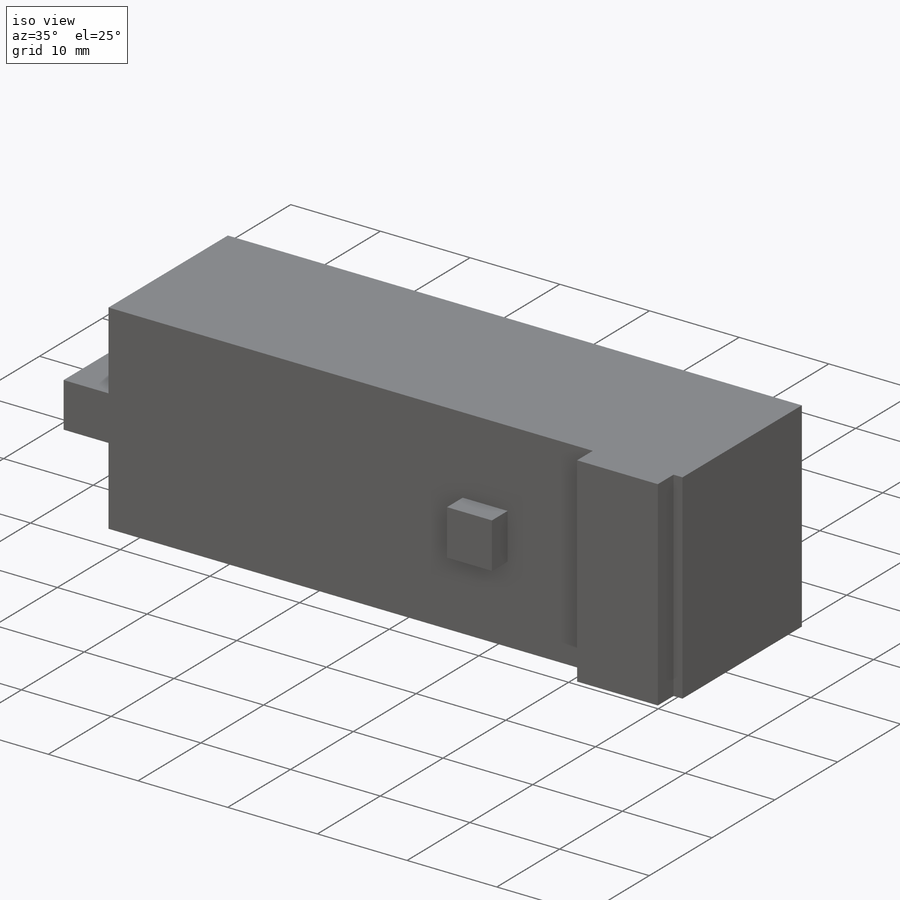
[diagram: iso view]
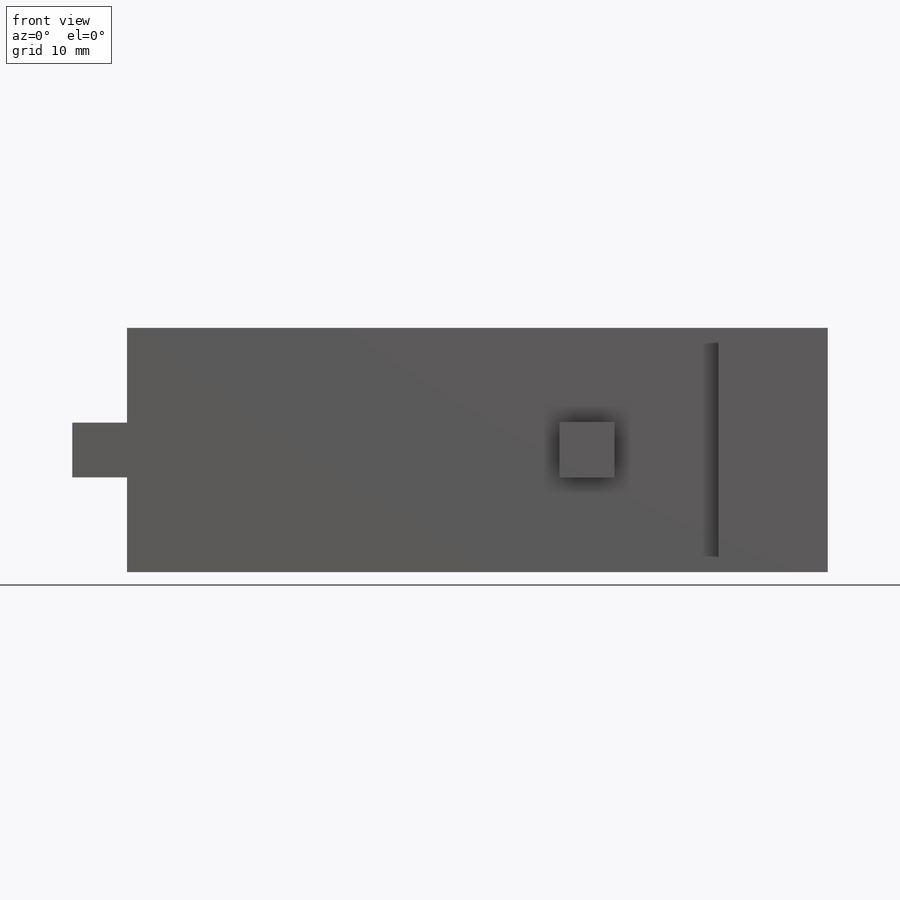
[diagram: front view]
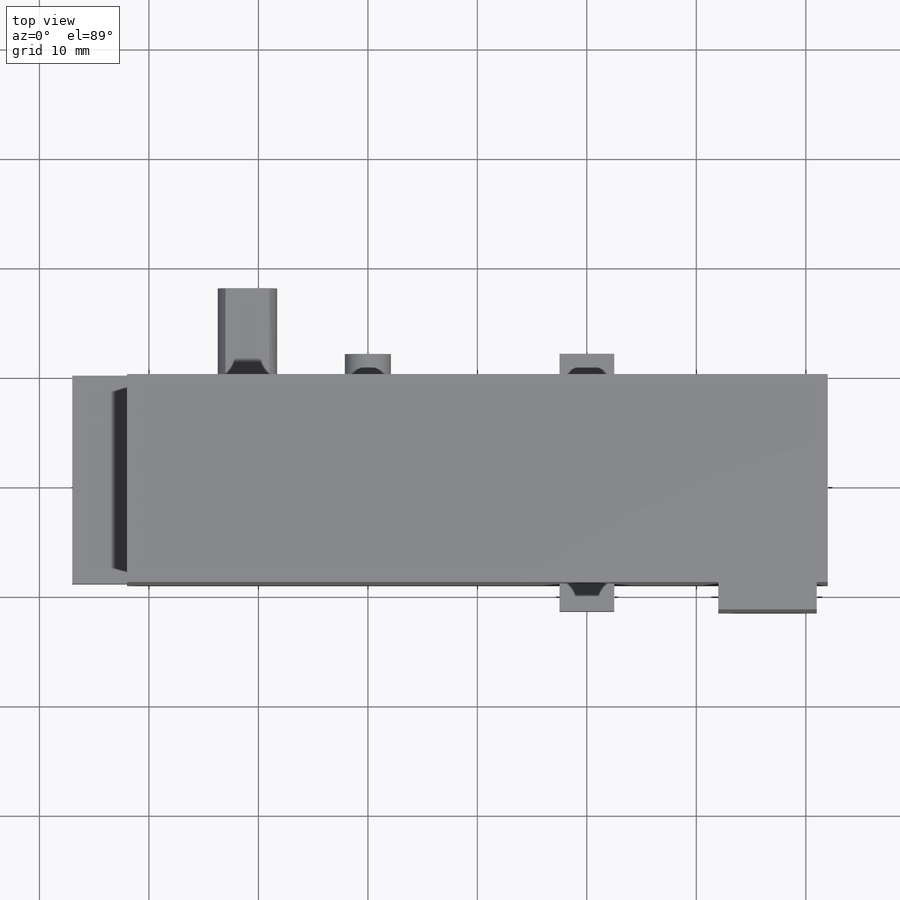
[diagram: top view]
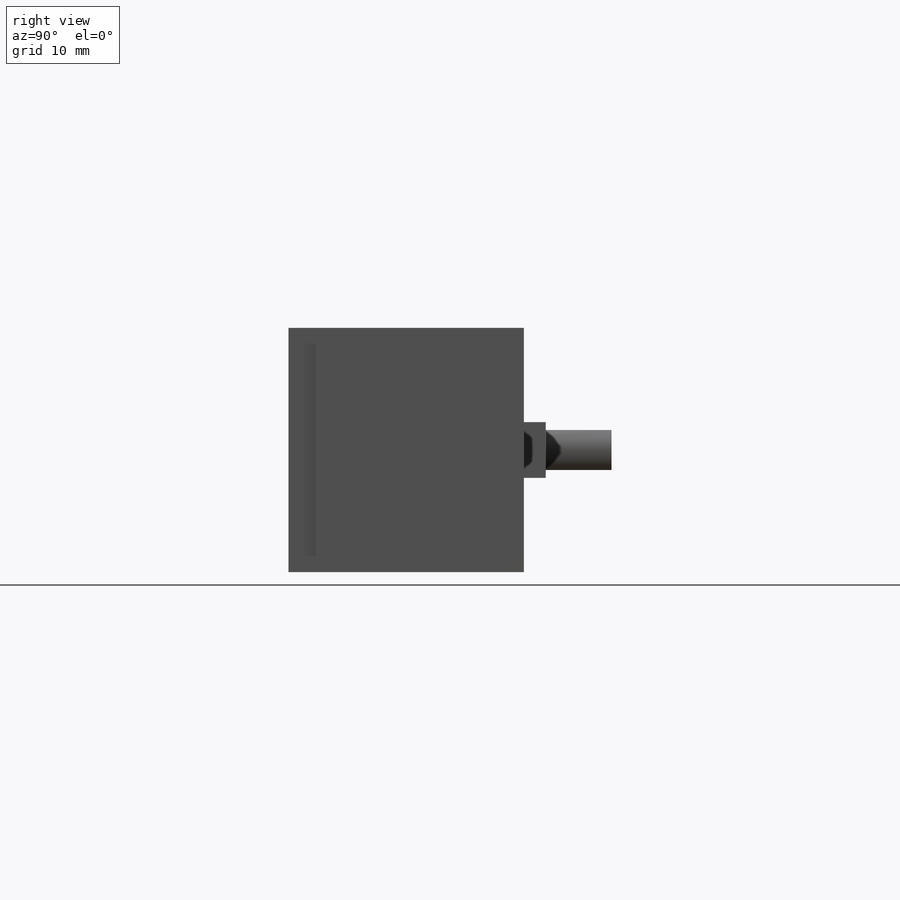
[diagram: right view]
SOLIDWORKS PART (.sldprt)
format: sldprt  version: not decoded by parser v0  size: 227,328 bytes
history: native  units: mm
features: sketch x5, extrude x4, material x1 (+11 scaffold rows collapsed)
feature tree (21):
  scaffold x11  (default folders/planes/origin — collapsed)
  material  "Material <not specified>"
  sketch  "Sketch1"  dims[c1.D8=4.2mm c1.D1=64.0mm c1.D2=22.3mm c1.D3=12.0mm c1.D4=3.65mm c1.D5=4.0mm c1.D6=2.5mm c1.D7=5.0mm c1.D9=11.0mm c1.D10=22.5mm c1.D11=5.1mm c1.D12=5.0mm c1.D13=63.0mm c1.D14=9.0mm c2.D10=20.0mm c2.D3=11.0mm]
  sketch  "Sketch2"
  extrude  "Boss-Extrude1"  Depth=19mm
  sketch  "Sketch3"
  extrude  "Boss-Extrude2"  Depth=8mm
  sketch  "Sketch4"
  extrude  "Boss-Extrude3"  Depth=2mm
  sketch  "Sketch5"
  extrude  "Boss-Extrude4"  Depth=2.5mm
decode coverage: 5 of 9 modeling features carry decoded parameters
note: suppression state not decoded; provenance and decode notes live in map.json
